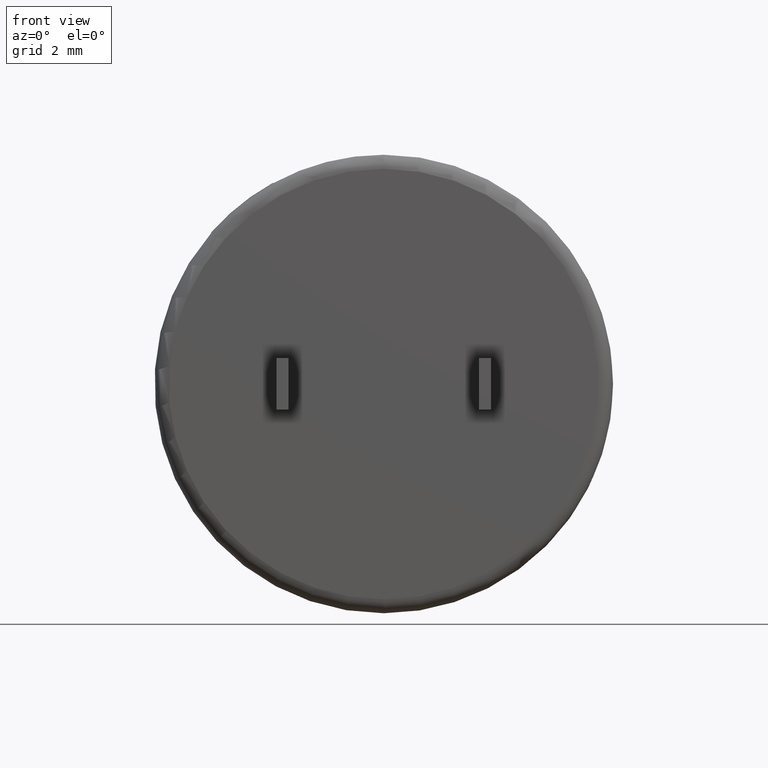
[diagram: clean part render]
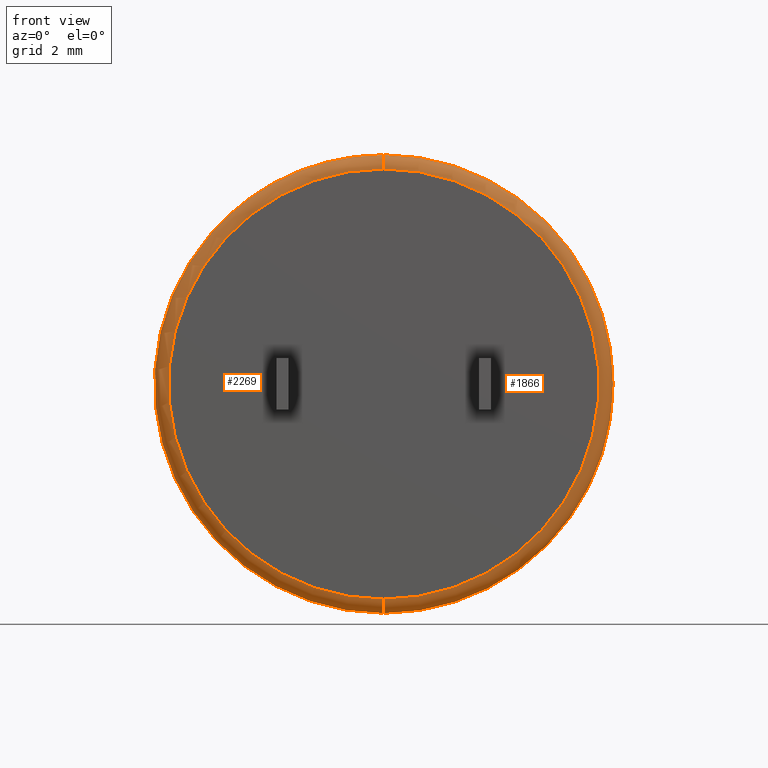
[diagram: same view with one multi-face feature highlighted, each face labeled with its STEP entity id]
A machine part, front view. The highlighted faces form ONE feature: a constant-radius fillet chain: 2 tangent blend faces with common blend radius 0.3548 mm. The faces share edges in the B-rep.
Their STEP definitions:
[1] entity #1866 (Torus):
#2 = CARTESIAN_POINT ( 'NONE',  ( 0.0000000000000000000, 0.3547500000000000100, -5.750000000000000000 ) ) ;
#225 = EDGE_CURVE ( 'NONE', #2258, #1745, #869, .T. ) ;
#243 = CARTESIAN_POINT ( 'NONE',  ( 7.041719095097280900E-016, 0.3547500000000000100, 5.750000000000000000 ) ) ;
#274 = DIRECTION ( 'NONE',  ( 1.224646799147354400E-016, 0.0000000000000000000, -1.000000000000000000 ) ) ;
#312 = EDGE_CURVE ( 'NONE', #1539, #2760, #401, .T. ) ;
#356 = AXIS2_PLACEMENT_3D ( 'NONE', #746, #1391, #1796 ) ;
#401 = CIRCLE ( 'NONE', #356, 5.395249999999999900 ) ;
#437 = CARTESIAN_POINT ( 'NONE',  ( 0.0000000000000000000, 0.0000000000000000000, 5.395249999999999900 ) ) ;
#468 = DIRECTION ( 'NONE',  ( 0.0000000000000000000, 1.000000000000000000, 0.0000000000000000000 ) ) ;
#490 = CIRCLE ( 'NONE', #2413, 0.3547500000000000100 ) ;
#650 = ORIENTED_EDGE ( 'NONE', *, *, #2126, .F. ) ;
#682 = EDGE_LOOP ( 'NONE', ( #1179, #2681, #1684, #650 ) ) ;
#746 = CARTESIAN_POINT ( 'NONE',  ( 0.0000000000000000000, 0.0000000000000000000, 0.0000000000000000000 ) ) ;
#869 = CIRCLE ( 'NONE', #2598, 5.750000000000000000 ) ;
#903 = AXIS2_PLACEMENT_3D ( 'NONE', #2605, #468, #1950 ) ;
#1066 = CIRCLE ( 'NONE', #2138, 0.3547500000000000100 ) ;
#1164 = DIRECTION ( 'NONE',  ( 0.0000000000000000000, 1.000000000000000000, 0.0000000000000000000 ) ) ;
#1178 = CARTESIAN_POINT ( 'NONE',  ( 6.824497369098519000E-016, 0.0000000000000000000, -5.395249999999999900 ) ) ;
#1179 = ORIENTED_EDGE ( 'NONE', *, *, #312, .F. ) ;
#1301 = DIRECTION ( 'NONE',  ( -1.000000000000000000, 0.0000000000000000000, 0.0000000000000000000 ) ) ;
#1391 = DIRECTION ( 'NONE',  ( -0.0000000000000000000, -1.000000000000000000, -0.0000000000000000000 ) ) ;
#1492 = EDGE_CURVE ( 'NONE', #1539, #1745, #490, .T. ) ;
#1539 = VERTEX_POINT ( 'NONE', #1178 ) ;
#1559 = CARTESIAN_POINT ( 'NONE',  ( 6.607275643099757100E-016, 0.3547500000000000100, -5.395249999999999900 ) ) ;
#1590 = DIRECTION ( 'NONE',  ( 0.0000000000000000000, 0.0000000000000000000, 1.000000000000000000 ) ) ;
#1684 = ORIENTED_EDGE ( 'NONE', *, *, #225, .F. ) ;
#1714 = TOROIDAL_SURFACE ( 'NONE', #903, 5.395249999999999900, 0.3547500000000000100 ) ;
#1745 = VERTEX_POINT ( 'NONE', #2 ) ;
#1780 = DIRECTION ( 'NONE',  ( 1.000000000000000000, -0.0000000000000000000, 1.224646799147353200E-016 ) ) ;
#1796 = DIRECTION ( 'NONE',  ( 0.0000000000000000000, 0.0000000000000000000, 1.000000000000000000 ) ) ;
#1866 = ADVANCED_FACE ( 'NONE', ( #2667 ), #1714, .T. ) ;
#1950 = DIRECTION ( 'NONE',  ( 0.0000000000000000000, 0.0000000000000000000, 1.000000000000000000 ) ) ;
#2126 = EDGE_CURVE ( 'NONE', #2760, #2258, #1066, .T. ) ;
#2138 = AXIS2_PLACEMENT_3D ( 'NONE', #2571, #1301, #2158 ) ;
#2158 = DIRECTION ( 'NONE',  ( 0.0000000000000000000, 0.0000000000000000000, 1.000000000000000000 ) ) ;
#2258 = VERTEX_POINT ( 'NONE', #243 ) ;
#2408 = CARTESIAN_POINT ( 'NONE',  ( 0.0000000000000000000, 0.3547500000000000100, 0.0000000000000000000 ) ) ;
#2413 = AXIS2_PLACEMENT_3D ( 'NONE', #1559, #1780, #274 ) ;
#2571 = CARTESIAN_POINT ( 'NONE',  ( 0.0000000000000000000, 0.3547500000000000100, 5.395249999999999900 ) ) ;
#2598 = AXIS2_PLACEMENT_3D ( 'NONE', #2408, #1164, #1590 ) ;
#2605 = CARTESIAN_POINT ( 'NONE',  ( 0.0000000000000000000, 0.3547500000000000100, 0.0000000000000000000 ) ) ;
#2667 = FACE_OUTER_BOUND ( 'NONE', #682, .T. ) ;
#2681 = ORIENTED_EDGE ( 'NONE', *, *, #1492, .T. ) ;
#2760 = VERTEX_POINT ( 'NONE', #437 ) ;
[2] entity #2269 (Torus):
#2 = CARTESIAN_POINT ( 'NONE',  ( 0.0000000000000000000, 0.3547500000000000100, -5.750000000000000000 ) ) ;
#4 = EDGE_CURVE ( 'NONE', #1736, #2258, #1517, .T. ) ;
#12 = CARTESIAN_POINT ( 'NONE',  ( -2.774450761967215400, 0.3547500000000000100, 5.036360091317889400 ) ) ;
#83 = EDGE_LOOP ( 'NONE', ( #2290, #893, #2612, #407, #1290, #87 ) ) ;
#87 = ORIENTED_EDGE ( 'NONE', *, *, #515, .F. ) ;
#145 = CARTESIAN_POINT ( 'NONE',  ( 0.0000000000000000000, 0.3547500000000000100, 0.0000000000000000000 ) ) ;
#239 = CARTESIAN_POINT ( 'NONE',  ( 0.0000000000000000000, 0.0000000000000000000, 0.0000000000000000000 ) ) ;
#243 = CARTESIAN_POINT ( 'NONE',  ( 7.041719095097280900E-016, 0.3547500000000000100, 5.750000000000000000 ) ) ;
#274 = DIRECTION ( 'NONE',  ( 1.224646799147354400E-016, 0.0000000000000000000, -1.000000000000000000 ) ) ;
#407 = ORIENTED_EDGE ( 'NONE', *, *, #4, .F. ) ;
#437 = CARTESIAN_POINT ( 'NONE',  ( 0.0000000000000000000, 0.0000000000000000000, 5.395249999999999900 ) ) ;
#490 = CIRCLE ( 'NONE', #2413, 0.3547500000000000100 ) ;
#515 = EDGE_CURVE ( 'NONE', #1745, #915, #2102, .T. ) ;
#614 = CARTESIAN_POINT ( 'NONE',  ( 0.0000000000000000000, 0.3547500000000000100, 0.0000000000000000000 ) ) ;
#640 = CARTESIAN_POINT ( 'NONE',  ( 0.0000000000000000000, 0.3547500000000000100, 0.0000000000000000000 ) ) ;
#893 = ORIENTED_EDGE ( 'NONE', *, *, #2753, .F. ) ;
#915 = VERTEX_POINT ( 'NONE', #2220 ) ;
#1036 = AXIS2_PLACEMENT_3D ( 'NONE', #640, #2162, #1303 ) ;
#1066 = CIRCLE ( 'NONE', #2138, 0.3547500000000000100 ) ;
#1070 = EDGE_CURVE ( 'NONE', #915, #1736, #1233, .T. ) ;
#1178 = CARTESIAN_POINT ( 'NONE',  ( 6.824497369098519000E-016, 0.0000000000000000000, -5.395249999999999900 ) ) ;
#1195 = CIRCLE ( 'NONE', #1969, 5.395249999999999900 ) ;
#1233 = CIRCLE ( 'NONE', #2633, 5.750000000000000000 ) ;
#1267 = DIRECTION ( 'NONE',  ( 0.0000000000000000000, 1.000000000000000000, 0.0000000000000000000 ) ) ;
#1290 = ORIENTED_EDGE ( 'NONE', *, *, #1070, .F. ) ;
#1301 = DIRECTION ( 'NONE',  ( -1.000000000000000000, 0.0000000000000000000, 0.0000000000000000000 ) ) ;
#1303 = DIRECTION ( 'NONE',  ( 0.0000000000000000000, 0.0000000000000000000, 1.000000000000000000 ) ) ;
#1418 = AXIS2_PLACEMENT_3D ( 'NONE', #614, #1676, #1886 ) ;
#1460 = AXIS2_PLACEMENT_3D ( 'NONE', #1749, #1721, #1930 ) ;
#1475 = DIRECTION ( 'NONE',  ( 0.0000000000000000000, 0.0000000000000000000, 1.000000000000000000 ) ) ;
#1492 = EDGE_CURVE ( 'NONE', #1539, #1745, #490, .T. ) ;
#1517 = CIRCLE ( 'NONE', #1036, 5.750000000000000000 ) ;
#1535 = DIRECTION ( 'NONE',  ( 0.0000000000000000000, 0.0000000000000000000, 1.000000000000000000 ) ) ;
#1539 = VERTEX_POINT ( 'NONE', #1178 ) ;
#1559 = CARTESIAN_POINT ( 'NONE',  ( 6.607275643099757100E-016, 0.3547500000000000100, -5.395249999999999900 ) ) ;
#1676 = DIRECTION ( 'NONE',  ( 0.0000000000000000000, 1.000000000000000000, 0.0000000000000000000 ) ) ;
#1721 = DIRECTION ( 'NONE',  ( 0.0000000000000000000, 1.000000000000000000, 0.0000000000000000000 ) ) ;
#1736 = VERTEX_POINT ( 'NONE', #12 ) ;
#1745 = VERTEX_POINT ( 'NONE', #2 ) ;
#1749 = CARTESIAN_POINT ( 'NONE',  ( 0.0000000000000000000, 0.3547500000000000100, 0.0000000000000000000 ) ) ;
#1780 = DIRECTION ( 'NONE',  ( 1.000000000000000000, -0.0000000000000000000, 1.224646799147353200E-016 ) ) ;
#1886 = DIRECTION ( 'NONE',  ( 0.0000000000000000000, 0.0000000000000000000, 1.000000000000000000 ) ) ;
#1930 = DIRECTION ( 'NONE',  ( 0.0000000000000000000, 0.0000000000000000000, 1.000000000000000000 ) ) ;
#1937 = DIRECTION ( 'NONE',  ( -0.0000000000000000000, -1.000000000000000000, -0.0000000000000000000 ) ) ;
#1969 = AXIS2_PLACEMENT_3D ( 'NONE', #239, #1937, #1535 ) ;
#2064 = FACE_OUTER_BOUND ( 'NONE', #83, .T. ) ;
#2102 = CIRCLE ( 'NONE', #1418, 5.750000000000000000 ) ;
#2126 = EDGE_CURVE ( 'NONE', #2760, #2258, #1066, .T. ) ;
#2138 = AXIS2_PLACEMENT_3D ( 'NONE', #2571, #1301, #2158 ) ;
#2158 = DIRECTION ( 'NONE',  ( 0.0000000000000000000, 0.0000000000000000000, 1.000000000000000000 ) ) ;
#2162 = DIRECTION ( 'NONE',  ( 0.0000000000000000000, 1.000000000000000000, 0.0000000000000000000 ) ) ;
#2220 = CARTESIAN_POINT ( 'NONE',  ( -4.324973273582348700, 0.3547500000000000100, 3.789077220485006100 ) ) ;
#2258 = VERTEX_POINT ( 'NONE', #243 ) ;
#2269 = ADVANCED_FACE ( 'NONE', ( #2064 ), #2697, .T. ) ;
#2290 = ORIENTED_EDGE ( 'NONE', *, *, #1492, .F. ) ;
#2413 = AXIS2_PLACEMENT_3D ( 'NONE', #1559, #1780, #274 ) ;
#2571 = CARTESIAN_POINT ( 'NONE',  ( 0.0000000000000000000, 0.3547500000000000100, 5.395249999999999900 ) ) ;
#2612 = ORIENTED_EDGE ( 'NONE', *, *, #2126, .T. ) ;
#2633 = AXIS2_PLACEMENT_3D ( 'NONE', #145, #1267, #1475 ) ;
#2697 = TOROIDAL_SURFACE ( 'NONE', #1460, 5.395249999999999900, 0.3547500000000000100 ) ;
#2753 = EDGE_CURVE ( 'NONE', #2760, #1539, #1195, .T. ) ;
#2760 = VERTEX_POINT ( 'NONE', #437 ) ;